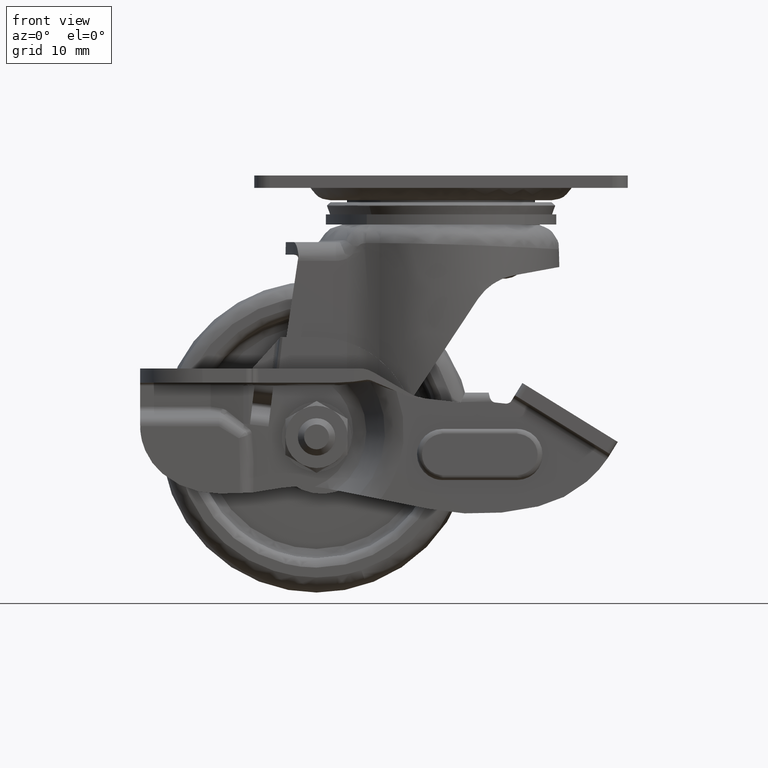
[diagram: clean part render]
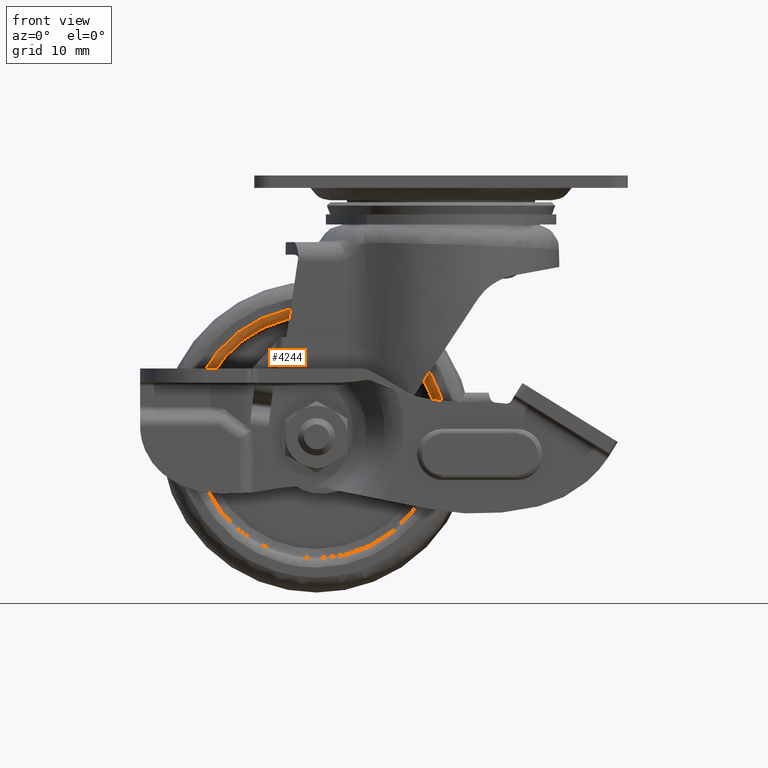
[diagram: same view with one face highlighted and labeled with its STEP entity id]
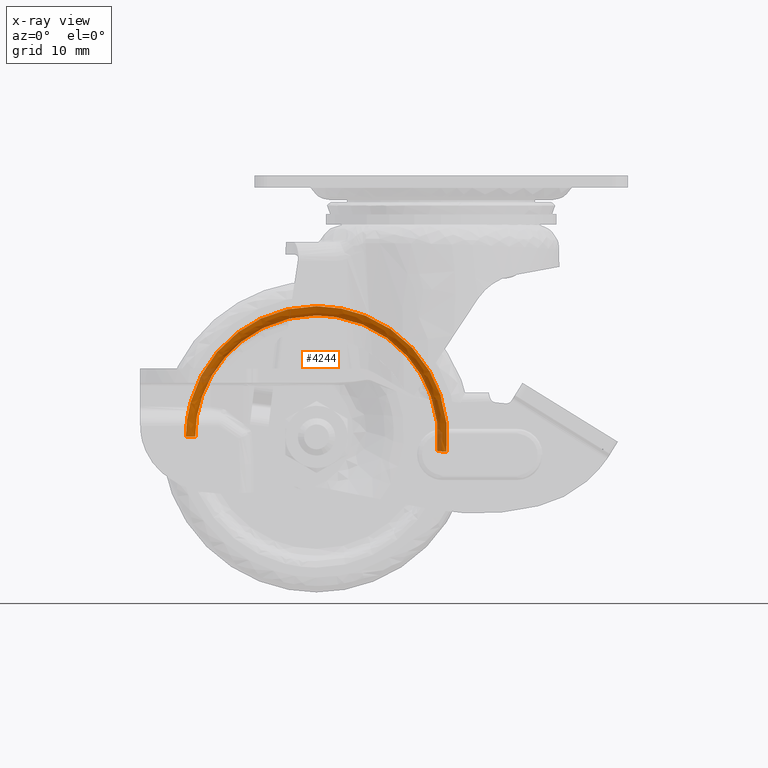
[diagram: x-ray of the same camera — body ghosted, the highlighted face saturated]
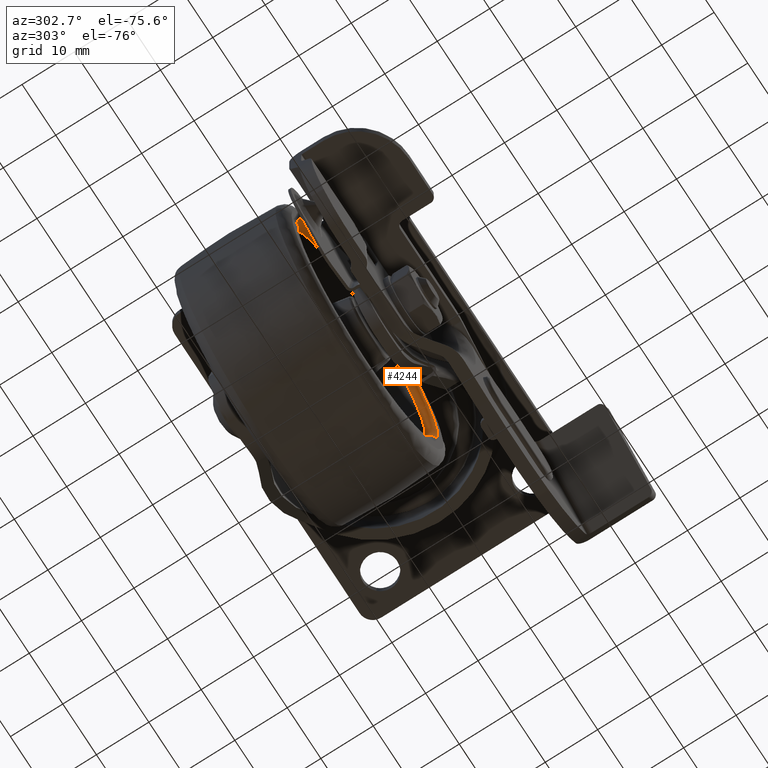
[diagram: same view with one face highlighted and labeled with its STEP entity id]
A machine part, front view. The second image highlights one B-rep face of the part: STEP entity #4244.
The next image is the same camera in x-ray: the body ghosted, the highlighted face saturated — about 8% of this face is hidden behind the body in this view.
A second angle (auxiliary view) of the same face is appended — the face is thin or edge-on in the first view.
In plain terms, the highlighted face is a freeform B-spline surface patch.
Its self-contained STEP definition (entity closure, byte-faithful):
#2833=CARTESIAN_POINT('',(-16.885490511585811,-9.499999999946830,-22.751472953939210));
#2834=VERTEX_POINT('',#2833);
#2840=CARTESIAN_POINT('',(-20.000114999999901,-9.500000000000000,-22.501118000000002));
#2841=VERTEX_POINT('',#2840);
#2842=CARTESIAN_POINT('',(-16.885490511585811,-9.499999999946830,-22.751472953939210));
#2843=CARTESIAN_POINT('',(-17.914774169383961,-9.499999999960574,-22.584891460039898));
#2844=CARTESIAN_POINT('',(-18.957437017046189,-9.499999999978344,-22.501065502922170));
#2845=CARTESIAN_POINT('',(-20.000114999999901,-9.500000000000000,-22.501118000000002));
#2846=B_SPLINE_CURVE_WITH_KNOTS('',3,(#2842,#2843,#2844,#2845),.UNSPECIFIED.,.F.,.U.,(4,4),(5.768155E-010,3.128036065581156),.UNSPECIFIED.);
#2847=EDGE_CURVE('',#2834,#2841,#2846,.T.);
#2849=CARTESIAN_POINT('',(-39.499555999999899,-9.500000000537735,-42.000559000000003));
#2850=VERTEX_POINT('',#2849);
#2851=CARTESIAN_POINT('',(-20.000114999999901,-9.500000000000000,-22.501118000000002));
#2852=CARTESIAN_POINT('',(-21.356128426362108,-9.499999999999973,-22.500905279953781));
#2853=CARTESIAN_POINT('',(-23.709091840687432,-9.500000000006883,-22.747616129835020));
#2854=CARTESIAN_POINT('',(-27.317141127928629,-9.500000000035868,-23.805806443770269));
#2855=CARTESIAN_POINT('',(-30.286414587326000,-9.500000000077527,-25.311767341675100));
#2856=CARTESIAN_POINT('',(-32.550675924827992,-9.500000000124780,-27.023940393605230));
#2857=CARTESIAN_POINT('',(-34.319197525022837,-9.500000000170751,-28.697344012453101));
#2858=CARTESIAN_POINT('',(-35.987083997849162,-9.500000000225938,-30.691828693508739));
#2859=CARTESIAN_POINT('',(-37.501747094230197,-9.500000000296033,-33.236627155177622));
#2860=CARTESIAN_POINT('',(-38.677252664047927,-9.500000000375700,-36.124494798511122));
#2861=CARTESIAN_POINT('',(-39.353046630108452,-9.500000000455254,-39.009377891090402));
#2862=CARTESIAN_POINT('',(-39.499571138922917,-9.500000000512436,-41.083272969765353));
#2863=CARTESIAN_POINT('',(-39.499555999999899,-9.500000000537735,-42.000559000000003));
#2864=B_SPLINE_CURVE_WITH_KNOTS('',3,(#2851,#2852,#2853,#2854,#2855,#2856,#2857,#2858,#2859,#2860,#2861,#2862,#2863),.UNSPECIFIED.,.F.,.U.,(4,1,1,1,1,1,1,1,1,1,4),(0.000000085788667,4.068000536003389,7.059187792188219,11.246868034071889,13.998770546518189,15.554116220048490,18.545294229136619,21.775792089366579,24.408050629302700,27.877826307990290,30.629698346387912),.UNSPECIFIED.);
#2865=EDGE_CURVE('',#2841,#2850,#2864,.T.);
#2884=CARTESIAN_POINT('',(-0.631093304902426,-9.500000000592962,-44.252046927421382));
#2885=VERTEX_POINT('',#2884);
#2902=CARTESIAN_POINT('',(-5.395897066353633,-9.499999999997874,-29.079838514707951));
#2903=VERTEX_POINT('',#2902);
#2904=CARTESIAN_POINT('',(-0.631093304902426,-9.500000000592962,-44.252046927421382));
#2905=CARTESIAN_POINT('',(-0.527635454253879,-9.500000000550131,-43.362254298444938));
#2906=CARTESIAN_POINT('',(-0.431576218992069,-9.500000000454341,-41.312098796866991));
#2907=CARTESIAN_POINT('',(-0.739021604537365,-9.500000000334207,-38.545572313249473));
#2908=CARTESIAN_POINT('',(-1.396707400701843,-9.500000000232491,-36.023787773433121));
#2909=CARTESIAN_POINT('',(-2.193097832256676,-9.500000000154191,-33.949839965416437));
#2910=CARTESIAN_POINT('',(-3.439758688728707,-9.500000000070793,-31.563808749339550));
#2911=CARTESIAN_POINT('',(-4.604376136321254,-9.500000000022492,-29.974310805407239));
#2912=CARTESIAN_POINT('',(-5.395897066353633,-9.499999999997874,-29.079838514707951));
#2913=B_SPLINE_CURVE_WITH_KNOTS('',3,(#2904,#2905,#2906,#2907,#2908,#2909,#2910,#2911,#2912),.UNSPECIFIED.,.F.,.U.,(4,1,1,1,1,1,4),(0.000000025529296,2.687370105941712,6.142586171056884,8.318054604949106,10.493579632218950,12.797049653412071,16.380222392799421),.UNSPECIFIED.);
#2914=EDGE_CURVE('',#2885,#2903,#2913,.T.);
#3016=CARTESIAN_POINT('',(-5.395897066353633,-9.499999999997874,-29.079838514707951));
#3017=CARTESIAN_POINT('',(-6.134544039036054,-9.499999999975010,-28.244821229639719));
#3018=CARTESIAN_POINT('',(-7.755586917642456,-9.499999999938089,-26.701999584949370));
#3019=CARTESIAN_POINT('',(-10.255656102566130,-9.499999999913522,-25.030937446939991));
#3020=CARTESIAN_POINT('',(-13.280438781613130,-9.499999999910413,-23.590292265179020));
#3021=CARTESIAN_POINT('',(-15.440982893389890,-9.499999999927512,-22.984909718145140));
#3022=CARTESIAN_POINT('',(-16.885490511585811,-9.499999999946830,-22.751472953939210));
#3023=B_SPLINE_CURVE_WITH_KNOTS('',3,(#3016,#3017,#3018,#3019,#3020,#3021,#3022),.UNSPECIFIED.,.F.,.U.,(4,1,1,1,4),(4.053264E-009,3.344505473850459,6.689009687246243,8.988356457183993,13.378019370438659),.UNSPECIFIED.);
#3024=EDGE_CURVE('',#2903,#2834,#3023,.T.);
#4149=CARTESIAN_POINT('',(0.962206025983310,-10.996388420888980,-44.437252347881611));
#4150=CARTESIAN_POINT('',(1.103353370578151,-10.996388420888982,-43.222993708428923));
#4151=CARTESIAN_POINT('',(1.103353370578150,-10.996388420888984,-42.000559000000010));
#4152=CARTESIAN_POINT('',(1.103353370578154,-10.996388420888982,-20.897090629421953));
#4153=CARTESIAN_POINT('',(-20.000114999999901,-10.996388420888984,-20.897090629421960));
#4154=CARTESIAN_POINT('',(-41.103583370577944,-10.996388420888982,-20.897090629421953));
#4155=CARTESIAN_POINT('',(-41.103583370577951,-10.996388420888984,-42.000559000000003));
#4156=CARTESIAN_POINT('',(-0.746922257365321,-11.116005285235072,-44.238580573246075));
#4157=CARTESIAN_POINT('',(-0.617283128796156,-11.116005285235072,-43.123324509959275));
#4158=CARTESIAN_POINT('',(-0.617283128796156,-11.116005285235072,-42.000559000000010));
#4159=CARTESIAN_POINT('',(-0.617283128796152,-11.116005285235072,-22.617727128796265));
#4160=CARTESIAN_POINT('',(-20.000114999999901,-11.116005285235072,-22.617727128796258));
#4161=CARTESIAN_POINT('',(-39.382946871203622,-11.116005285235072,-22.617727128796247));
#4162=CARTESIAN_POINT('',(-39.382946871203650,-11.116005285235072,-42.000558999999988));
#4163=CARTESIAN_POINT('',(-0.627466919562834,-9.395413594144728,-44.252466250630349));
#4164=CARTESIAN_POINT('',(-0.497023452404082,-9.395413594144728,-43.130290644618519));
#4165=CARTESIAN_POINT('',(-0.497023452404082,-9.395413594144726,-42.000559000000003));
#4166=CARTESIAN_POINT('',(-0.497023452404079,-9.395413594144729,-22.497467452404194));
#4167=CARTESIAN_POINT('',(-20.000114999999894,-9.395413594144726,-22.497467452404191));
#4168=CARTESIAN_POINT('',(-39.503206547595724,-9.395413594144729,-22.497467452404180));
#4169=CARTESIAN_POINT('',(-39.503206547595731,-9.395413594144726,-42.000559000000003));
#4177=(BOUNDED_SURFACE()B_SPLINE_SURFACE(2,2,((#4149,#4156,#4163),(#4150,#4157,#4164),(#4151,#4158,#4165),(#4152,#4159,#4166),(#4153,#4160,#4167),(#4154,#4161,#4168),(#4155,#4162,#4169)),.UNSPECIFIED.,.F.,.F.,.U.)B_SPLINE_SURFACE_WITH_KNOTS((3,2,2,3),(3,3),(0.0,2.797227032259501,37.762598281079782,72.727969529900065),(0.0,2.733557470195414),.UNSPECIFIED.)GEOMETRIC_REPRESENTATION_ITEM()RATIONAL_B_SPLINE_SURFACE(((0.870832047614973,0.569876173723641,0.866008007552840),(0.888744390189593,0.581598086435523,0.883821123349549),(0.910068603666740,0.595552741890964,0.905027209731593),(0.643515680997725,0.421119382345342,0.639950877159549),(0.910068603666740,0.595552741890964,0.905027209731593),(0.643515680997725,0.421119382345342,0.639950877159549),(0.910068603666740,0.595552741890964,0.905027209731593)))REPRESENTATION_ITEM('')SURFACE());
#4178=ORIENTED_EDGE('',*,*,#2847,.F.);
#4179=ORIENTED_EDGE('',*,*,#3024,.F.);
#4180=ORIENTED_EDGE('',*,*,#2914,.F.);
#4181=CARTESIAN_POINT('',(0.858874145931887,-11.0,-44.425243271197779));
#4182=VERTEX_POINT('',#4181);
#4183=CARTESIAN_POINT('',(0.858874145931887,-11.0,-44.425243271197779));
#4184=CARTESIAN_POINT('',(0.676005167848127,-11.000156480808251,-44.403986270995951));
#4185=CARTESIAN_POINT('',(0.322623159753385,-10.933663397378840,-44.362908546957193));
#4186=CARTESIAN_POINT('',(-0.133721417754432,-10.658415805901750,-44.309862279207273));
#4187=CARTESIAN_POINT('',(-0.416168620737452,-10.311802725791560,-44.277030137246271));
#4188=CARTESIAN_POINT('',(-0.589845739525385,-9.917185723422945,-44.256841614372938));
#4189=CARTESIAN_POINT('',(-0.631177018379956,-9.659543575650627,-44.252037196419842));
#4190=CARTESIAN_POINT('',(-0.631093304902426,-9.500000000592962,-44.252046927421382));
#4191=B_SPLINE_CURVE_WITH_KNOTS('',3,(#4183,#4184,#4185,#4186,#4187,#4188,#4189,#4190),.UNSPECIFIED.,.F.,.U.,(4,1,1,1,1,4),(0.000000326294279,0.552244123744184,1.067693069068646,1.583101367184408,1.877644651852152,2.356253613778101),.UNSPECIFIED.);
#4192=EDGE_CURVE('',#4182,#2885,#4191,.T.);
#4193=ORIENTED_EDGE('',*,*,#4192,.F.);
#4194=CARTESIAN_POINT('',(-20.000114999999901,-11.0,-21.001118000000002));
#4195=VERTEX_POINT('',#4194);
#4196=CARTESIAN_POINT('',(0.858874145931887,-11.0,-44.425243271197779));
#4197=CARTESIAN_POINT('',(1.013467449701628,-11.0,-43.096876942755948));
#4198=CARTESIAN_POINT('',(1.058040937327274,-11.000000000000020,-40.873738850722873));
#4199=CARTESIAN_POINT('',(0.550043058903972,-10.999999999999970,-37.212380991647848));
#4200=CARTESIAN_POINT('',(-0.483316133075918,-11.000000000000149,-33.940233799343062));
#4201=CARTESIAN_POINT('',(-2.106973846639196,-10.999999999999780,-30.875138463828399));
#4202=CARTESIAN_POINT('',(-3.764905604285760,-11.000000000000250,-28.595135411404229));
#4203=CARTESIAN_POINT('',(-5.756926001542334,-10.999999999999920,-26.473375897930190));
#4204=CARTESIAN_POINT('',(-7.923888377201092,-10.999999999999959,-24.737937748489720));
#4205=CARTESIAN_POINT('',(-10.741739930723471,-11.000000000000369,-23.060554605656279));
#4206=CARTESIAN_POINT('',(-13.789554752022770,-10.999999999998970,-21.824035315530288));
#4207=CARTESIAN_POINT('',(-17.094918560514451,-11.000000000001810,-21.128249323210952));
#4208=CARTESIAN_POINT('',(-19.123952275055469,-10.999999999998041,-21.001098641939180));
#4209=CARTESIAN_POINT('',(-20.000114999999901,-11.0,-21.001118000000002));
#4210=B_SPLINE_CURVE_WITH_KNOTS('',3,(#4196,#4197,#4198,#4199,#4200,#4201,#4202,#4203,#4204,#4205,#4206,#4207,#4208,#4209),.UNSPECIFIED.,.F.,.U.,(4,1,1,1,1,1,1,1,1,1,1,4),(0.000000094488776,4.011956549280157,6.640499980312157,11.067517022127189,14.249424843773900,17.016326093250878,19.506436605261332,22.965067337960210,25.316908484546872,29.328901391939318,32.787518957401829,35.416013327383503),.UNSPECIFIED.);
#4211=EDGE_CURVE('',#4182,#4195,#4210,.T.);
#4212=ORIENTED_EDGE('',*,*,#4211,.T.);
#4213=CARTESIAN_POINT('',(-40.999555995700199,-11.0,-42.000558999999953));
#4214=VERTEX_POINT('',#4213);
#4215=CARTESIAN_POINT('',(-20.000114999999901,-11.0,-21.001118000000002));
#4216=CARTESIAN_POINT('',(-21.589307379750771,-11.000000000000011,-21.000763199967022));
#4217=CARTESIAN_POINT('',(-24.123195978720481,-11.0,-21.290260871629140));
#4218=CARTESIAN_POINT('',(-27.707163246891110,-10.999999999999980,-22.377419564135721));
#4219=CARTESIAN_POINT('',(-30.465951398076260,-11.000000000000149,-23.703008035521759));
#4220=CARTESIAN_POINT('',(-33.275584565875207,-10.999999999999901,-25.617951662715971));
#4221=CARTESIAN_POINT('',(-35.632114894489007,-10.999999999999940,-27.834119162911630));
#4222=CARTESIAN_POINT('',(-37.483532917962307,-11.000000000000060,-30.267664491188111));
#4223=CARTESIAN_POINT('',(-38.926907202429547,-10.999999999999879,-32.761714843634493));
#4224=CARTESIAN_POINT('',(-39.965707769346558,-11.000000000000300,-35.269568894100637));
#4225=CARTESIAN_POINT('',(-40.790475576649520,-10.999999999999380,-38.478698159476757));
#4226=CARTESIAN_POINT('',(-40.999730982280880,-11.000000000000719,-40.669093866341413));
#4227=CARTESIAN_POINT('',(-40.999555995700199,-11.0,-42.000558999999953));
#4228=B_SPLINE_CURVE_WITH_KNOTS('',3,(#4215,#4216,#4217,#4218,#4219,#4220,#4221,#4222,#4223,#4224,#4225,#4226,#4227),.UNSPECIFIED.,.F.,.U.,(4,1,1,1,1,1,1,1,1,1,4),(0.000000083753818,4.767468602169053,7.602215159268077,11.210069779669780,13.915928764261640,17.781455610690148,20.873877886461820,23.064356070616011,26.414488762778241,28.991537531122258,32.985896528039667),.UNSPECIFIED.);
#4229=EDGE_CURVE('',#4195,#4214,#4228,.T.);
#4230=ORIENTED_EDGE('',*,*,#4229,.T.);
#4231=CARTESIAN_POINT('',(-40.999555995700199,-11.0,-42.000558999999953));
#4232=CARTESIAN_POINT('',(-40.790897650736852,-11.000254552936241,-42.000558999999903));
#4233=CARTESIAN_POINT('',(-40.386115129740062,-10.914170225933880,-42.000559000000131));
#4234=CARTESIAN_POINT('',(-39.925892824143780,-10.590058304572430,-42.000558999999853));
#4235=CARTESIAN_POINT('',(-39.590115757480703,-10.113277950470030,-42.000559000000123));
#4236=CARTESIAN_POINT('',(-39.499155130887502,-9.733246026708638,-42.000558999999832));
#4237=CARTESIAN_POINT('',(-39.499555999999899,-9.500000000537735,-42.000559000000003));
#4238=B_SPLINE_CURVE_WITH_KNOTS('',3,(#4231,#4232,#4233,#4234,#4235,#4236,#4237),.UNSPECIFIED.,.F.,.U.,(4,1,1,1,4),(0.000000326288702,0.625883172871494,1.214895297909000,1.656735932704948,2.356253614858467),.UNSPECIFIED.);
#4239=EDGE_CURVE('',#4214,#2850,#4238,.T.);
#4240=ORIENTED_EDGE('',*,*,#4239,.T.);
#4241=ORIENTED_EDGE('',*,*,#2865,.F.);
#4242=EDGE_LOOP('',(#4178,#4179,#4180,#4193,#4212,#4230,#4240,#4241));
#4243=FACE_OUTER_BOUND('',#4242,.T.);
#4244=ADVANCED_FACE('',(#4243),#4177,.T.);